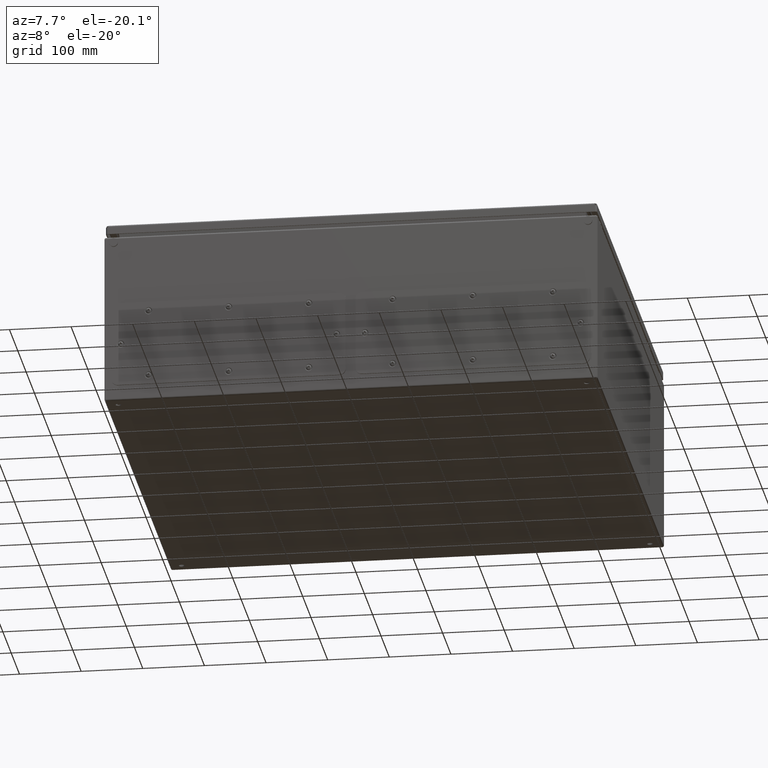
[diagram: clean part render]
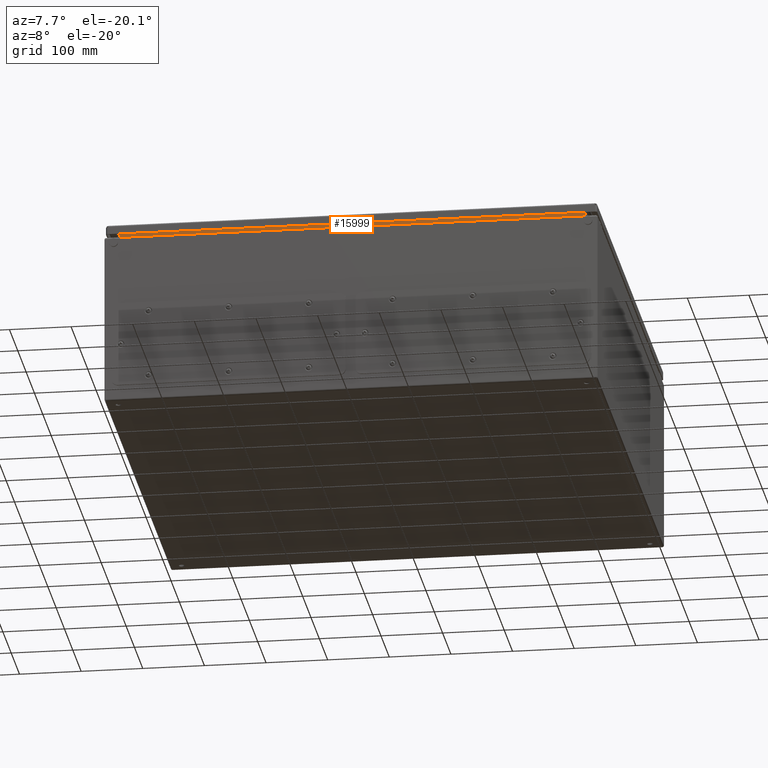
[diagram: same view with one face highlighted and labeled with its STEP entity id]
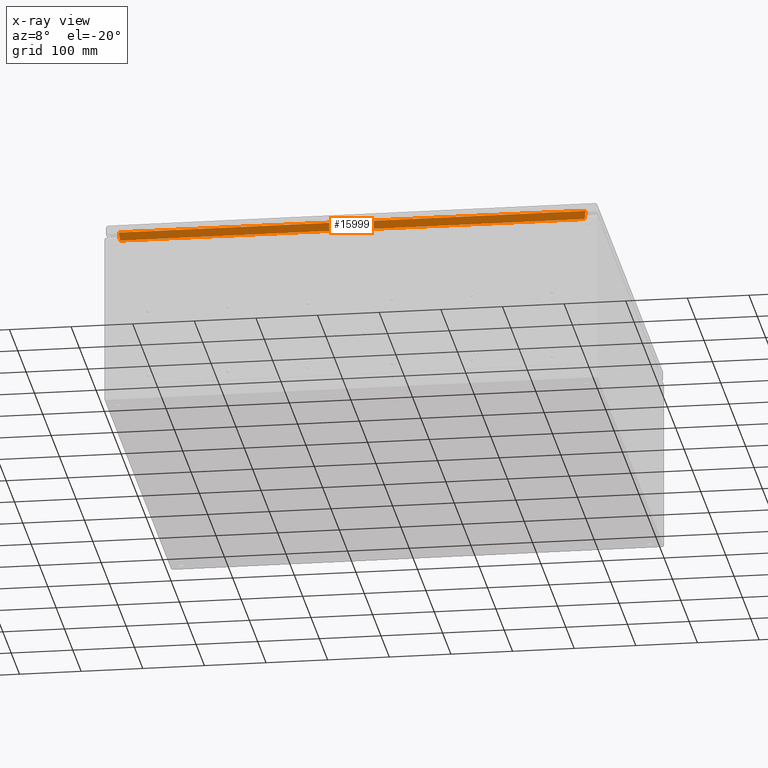
[diagram: x-ray of the same camera — body ghosted, the highlighted face saturated]
A machine part, auxiliary view. The second image highlights one B-rep face of the part: STEP entity #15999.
The next image is the same camera in x-ray: the body ghosted, the highlighted face saturated — about 0% of this face is hidden behind the body in this view.
In plain terms, the highlighted planar face has unit normal (-0, -0.9903, -0.1392).
Its self-contained STEP definition (entity closure, byte-faithful):
#5611 = CARTESIAN_POINT ( 'NONE',  ( 378.0933513303412500, -379.3810286342962300, 294.9812403485548200 ) ) ;
#5633 = CARTESIAN_POINT ( 'NONE',  ( 376.2096941928196500, -377.5157031185480600, 281.7087596514355100 ) ) ;
#5635 = DIRECTION ( 'NONE',  ( 2.149848759425680400E-017, 0.1391731009600692700, -0.9902680687415698100 ) ) ;
#5636 = DIRECTION ( 'NONE',  ( -1.783878008250648700E-016, -0.9902680687415698100, -0.1391731009600692700 ) ) ;
#5637 = CARTESIAN_POINT ( 'NONE',  ( 398.4992928932698000, -377.0354021031132600, 278.2912403485548800 ) ) ;
#5638 = AXIS2_PLACEMENT_3D ( 'NONE', #5637, #5636, #5635 ) ;
#5639 = PLANE ( 'NONE',  #5638 ) ;
#5640 = FACE_OUTER_BOUND ( 'NONE', #16000, .T. ) ;
#5645 = DIRECTION ( 'NONE',  ( -0.1391731009600605500, -0.1378186779085034700, 0.9806308479691596700 ) ) ;
#5646 = VECTOR ( 'NONE', #5645, 999.9999999999998900 ) ;
#5647 = CARTESIAN_POINT ( 'NONE',  ( -362.1995575552314800, -362.1565100645698300, 172.4224224348837700 ) ) ;
#5648 = LINE ( 'NONE', #5647, #5646 ) ;
#5668 = CARTESIAN_POINT ( 'NONE',  ( -379.5933513302987900, -379.3810286342979300, 294.9812403485546500 ) ) ;
#5689 = DIRECTION ( 'NONE',  ( -0.1391731009600821700, 0.1378186779085054400, -0.9806308479691562300 ) ) ;
#5690 = VECTOR ( 'NONE', #5689, 1000.000000000000100 ) ;
#5691 = CARTESIAN_POINT ( 'NONE',  ( 375.9992928932753700, -377.3073494299876500, 280.2262461243060400 ) ) ;
#5692 = LINE ( 'NONE', #5691, #5690 ) ;
#5706 = DIRECTION ( 'NONE',  ( -1.000000000000000000, 1.836909530733565900E-016, -2.525979873937639100E-017 ) ) ;
#5707 = VECTOR ( 'NONE', #5706, 1000.000000000000000 ) ;
#5708 = CARTESIAN_POINT ( 'NONE',  ( 398.4992928932698000, -377.5157031185515300, 281.7087596514350600 ) ) ;
#5709 = LINE ( 'NONE', #5708, #5707 ) ;
#5727 = DIRECTION ( 'NONE',  ( -1.000000000000000000, 1.796437541945370800E-016, 3.537517623442317800E-018 ) ) ;
#5728 = VECTOR ( 'NONE', #5727, 1000.000000000000000 ) ;
#5729 = CARTESIAN_POINT ( 'NONE',  ( 398.4992928932698000, -379.3810286342962300, 294.9812403485548200 ) ) ;
#5730 = LINE ( 'NONE', #5729, #5728 ) ;
#5805 = CARTESIAN_POINT ( 'NONE',  ( -377.7096941927774200, -377.5157031185513600, 281.7087596514350000 ) ) ;
#15948 = VERTEX_POINT ( 'NONE', #5633 ) ;
#15961 = VERTEX_POINT ( 'NONE', #5611 ) ;
#15986 = EDGE_CURVE ( 'NONE', #16106, #16034, #5648, .T. ) ;
#15999 = ADVANCED_FACE ( 'NONE', ( #5640 ), #5639, .T. ) ;
#16000 = EDGE_LOOP ( 'NONE', ( #16003, #16053, #16062, #16066 ) ) ;
#16003 = ORIENTED_EDGE ( 'NONE', *, *, #15986, .F. ) ;
#16013 = EDGE_CURVE ( 'NONE', #15961, #15948, #5692, .T. ) ;
#16034 = VERTEX_POINT ( 'NONE', #5668 ) ;
#16039 = EDGE_CURVE ( 'NONE', #15961, #16034, #5730, .T. ) ;
#16053 = ORIENTED_EDGE ( 'NONE', *, *, #16058, .F. ) ;
#16058 = EDGE_CURVE ( 'NONE', #15948, #16106, #5709, .T. ) ;
#16062 = ORIENTED_EDGE ( 'NONE', *, *, #16013, .F. ) ;
#16066 = ORIENTED_EDGE ( 'NONE', *, *, #16039, .T. ) ;
#16106 = VERTEX_POINT ( 'NONE', #5805 ) ;